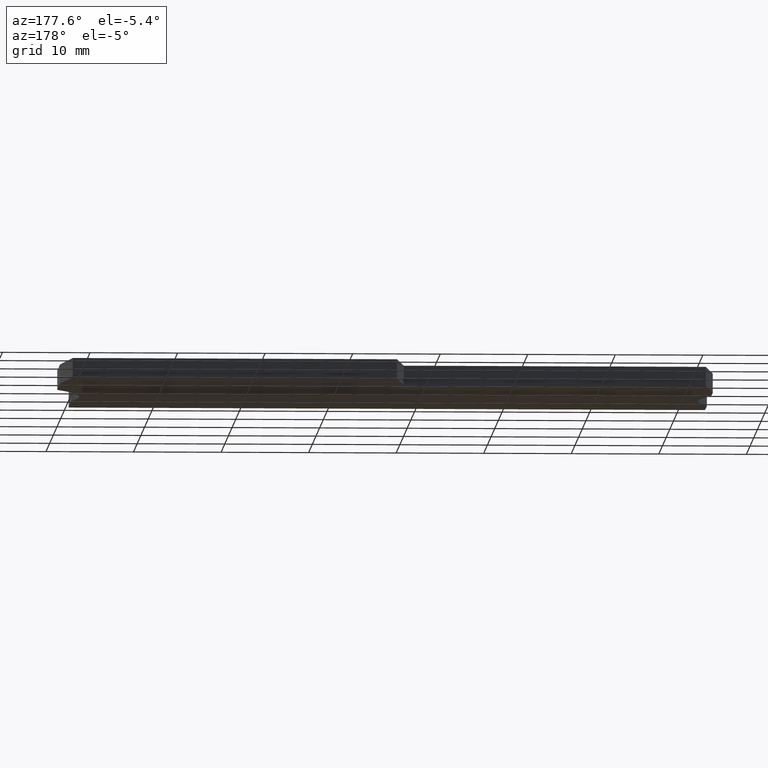
[diagram: clean part render]
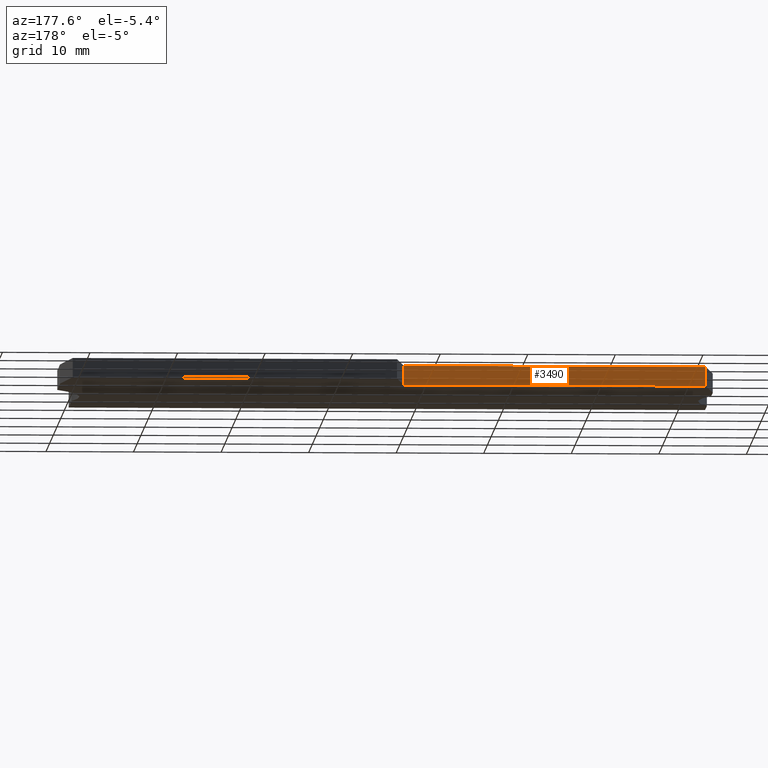
[diagram: same view with one face highlighted and labeled with its STEP entity id]
A machine part, auxiliary view. The second image highlights one B-rep face of the part: STEP entity #3490.
In plain terms, the highlighted planar face has unit normal (-0, 1, 0).
Its self-contained STEP definition (entity closure, byte-faithful):
#690=CARTESIAN_POINT('',(36.6191929687223,-94.5905475857231,
-8.1000000001129));
#700=VERTEX_POINT('',#690);
#730=CARTESIAN_POINT('',(0.,-94.590547585728,-8.1000000002166));
#740=DIRECTION('',(1.,1.3294920720348E-13,2.83162617508315E-12));
#750=VECTOR('',#740,1.);
#760=LINE('',#730,#750);
#770=CARTESIAN_POINT('',(2.11693877514894,-94.5905475857277,
-8.1000000002106));
#780=VERTEX_POINT('',#770);
#790=EDGE_CURVE('',#780,#700,#760,.T.);
#1420=CARTESIAN_POINT('',(2.11693877515517,-94.5905475857258,
-10.3000000000331));
#1430=VERTEX_POINT('',#1420);
#1460=CARTESIAN_POINT('',(0.,-94.5905475857261,-10.3000000000365));
#1470=DIRECTION('',(1.,1.32949207204527E-13,1.62231146262325E-12));
#1480=VECTOR('',#1470,1.);
#1490=LINE('',#1460,#1480);
#1500=CARTESIAN_POINT('',(36.6191929687286,-94.5905475857213,
-10.2999999999771));
#1510=VERTEX_POINT('',#1500);
#1520=EDGE_CURVE('',#1430,#1510,#1490,.T.);
#3160=CARTESIAN_POINT('',(36.6191929686994,-94.5905475857302,0.));
#3170=DIRECTION('',(2.83162617508304E-12,8.65946784951905E-13,-1.));
#3180=VECTOR('',#3170,1.);
#3190=LINE('',#3160,#3180);
#3200=EDGE_CURVE('',#700,#1510,#3190,.T.);
#3330=CARTESIAN_POINT('',(2.5515821440572,-94.5905475857277,
-8.10000000020937));
#3340=DIRECTION('',(1.32949207205932E-13,-1.,-8.65946784951529E-13));
#3350=DIRECTION('',(-1.,-1.3294920720348E-13,-2.83162617508315E-12));
#3360=AXIS2_PLACEMENT_3D('',#3330,#3340,#3350);
#3370=PLANE('',#3360);
#3380=ORIENTED_EDGE('',*,*,#790,.F.);
#3390=ORIENTED_EDGE('',*,*,#3200,.F.);
#3400=ORIENTED_EDGE('',*,*,#1520,.T.);
#3410=CARTESIAN_POINT('',(2.11693877512601,-94.5905475857348,0.));
#3420=DIRECTION('',(-2.83162617508304E-12,-8.65946784951905E-13,1.));
#3430=VECTOR('',#3420,1.);
#3440=LINE('',#3410,#3430);
#3450=EDGE_CURVE('',#1430,#780,#3440,.T.);
#3460=ORIENTED_EDGE('',*,*,#3450,.F.);
#3470=EDGE_LOOP('',(#3460,#3400,#3390,#3380));
#3480=FACE_OUTER_BOUND('',#3470,.T.);
#3490=ADVANCED_FACE('',(#3480),#3370,.T.);